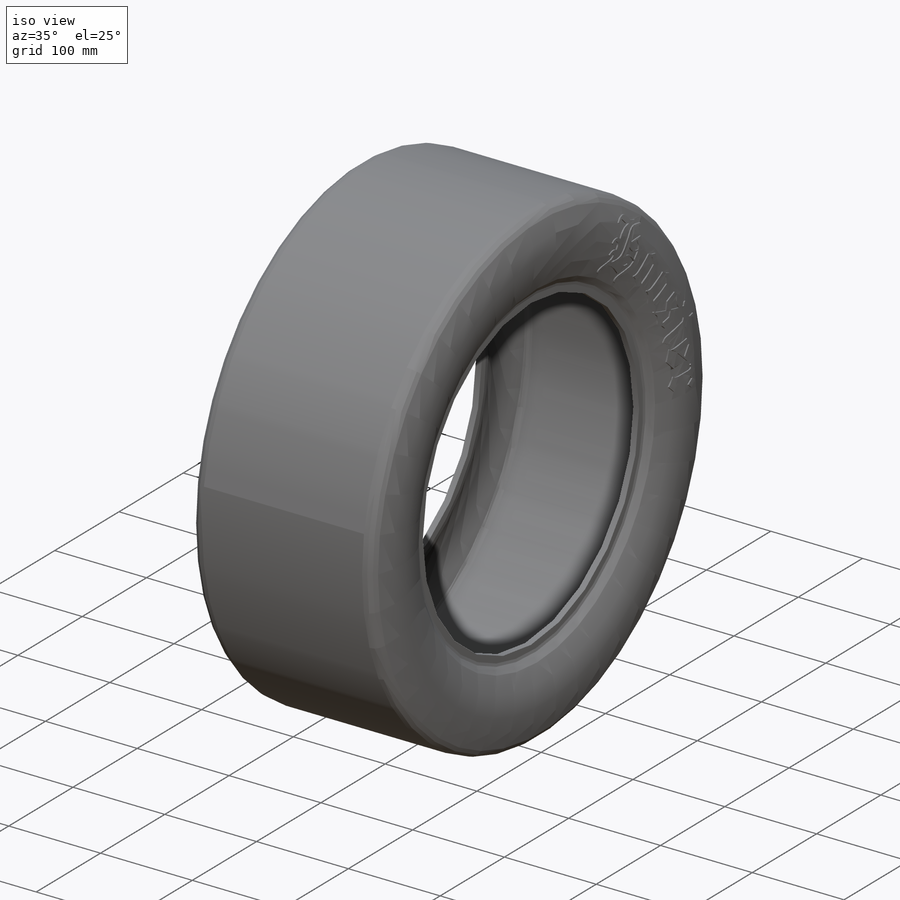
[diagram: iso view]
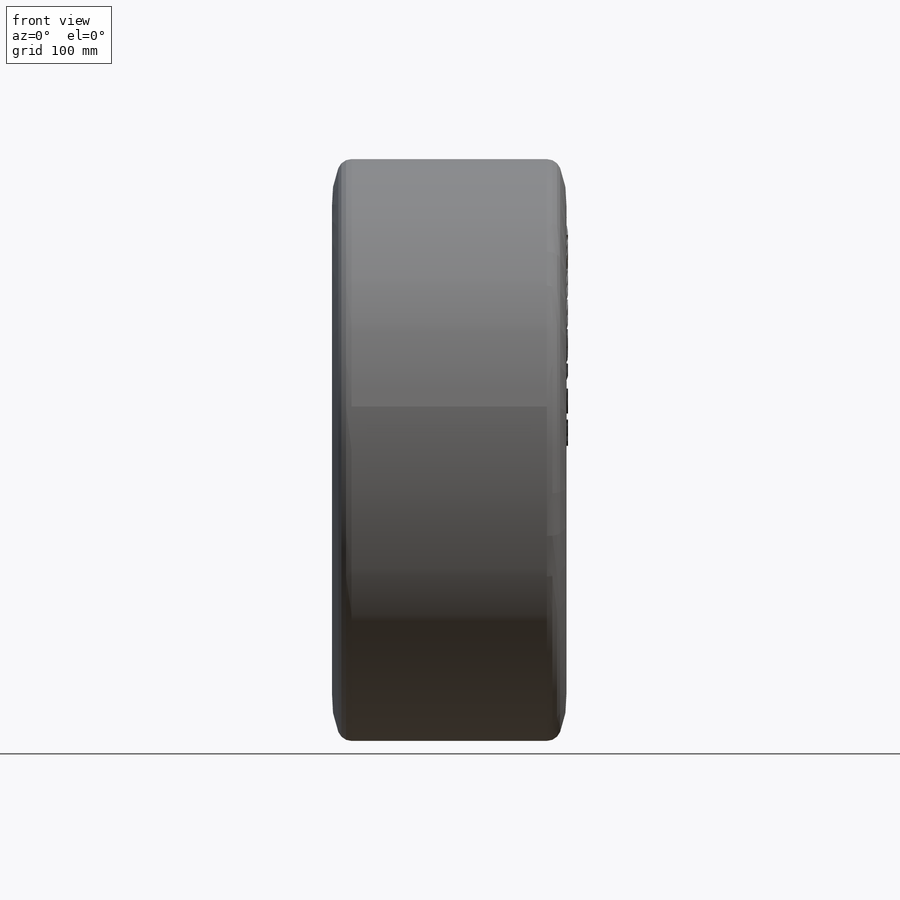
[diagram: front view]
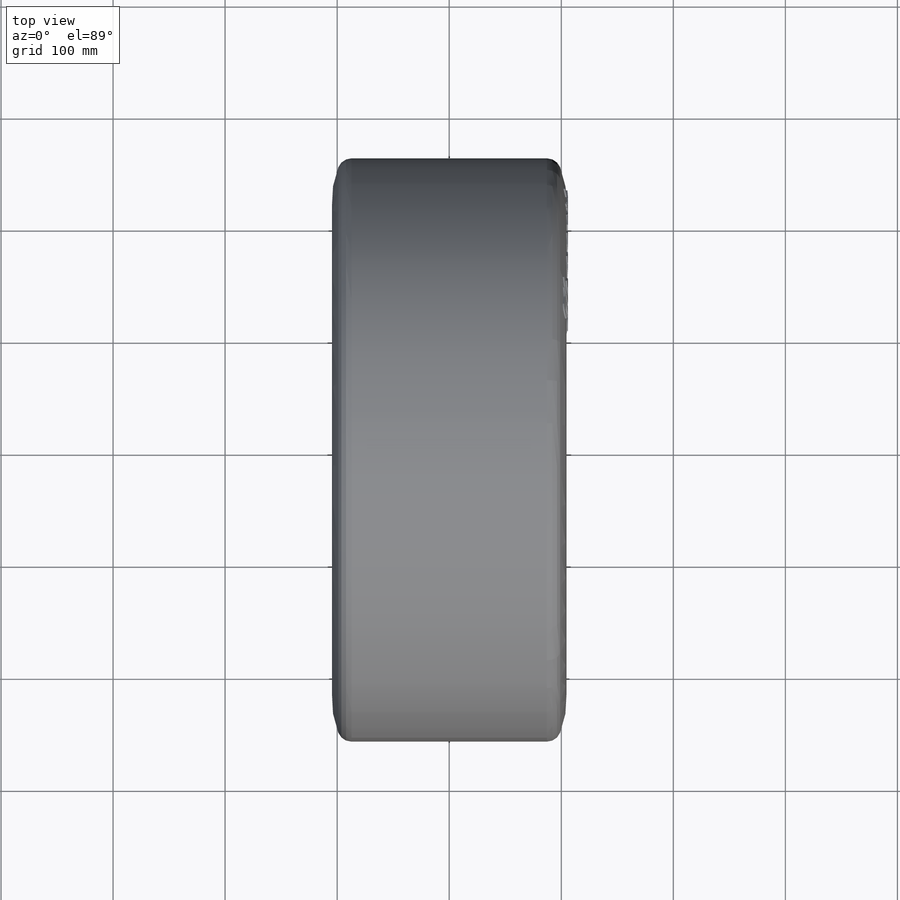
[diagram: top view]
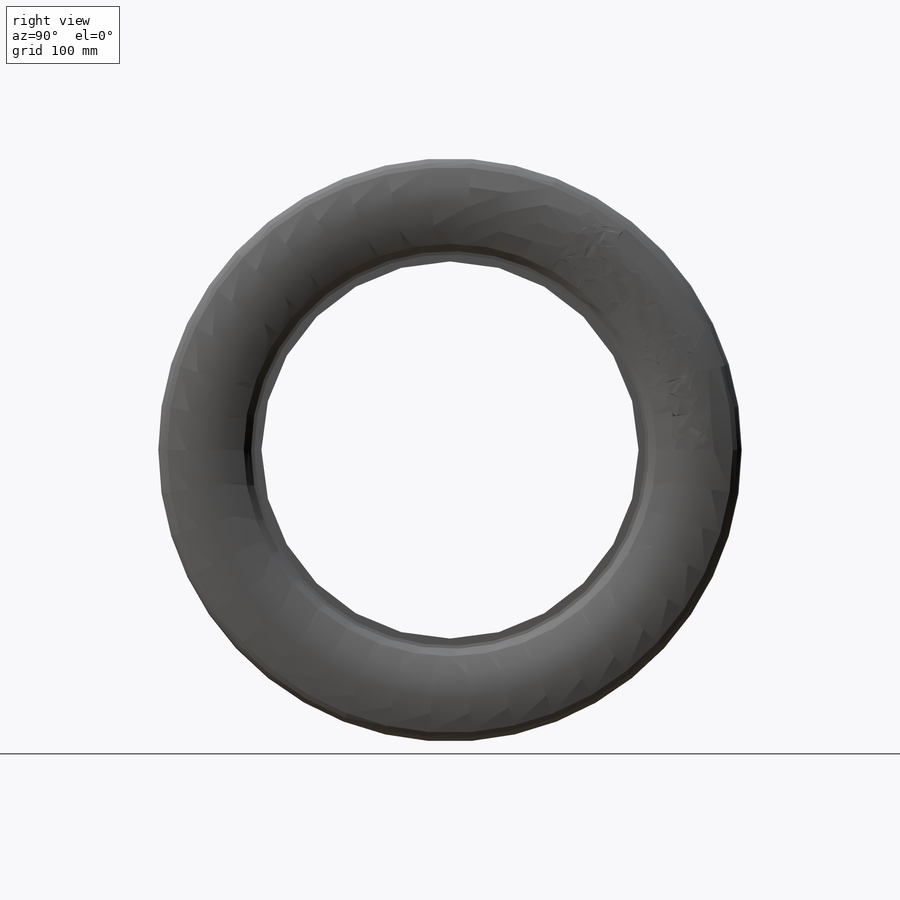
[diagram: right view]
SOLIDWORKS PART (.sldprt)
format: sldprt  version: not decoded by parser v0  size: 823,296 bytes
history: native  units: mm
features: sketch x2, material x1, revolve x1, mirror x1, fillet x1, shell x1, extrude x1 (+11 scaffold rows collapsed)
feature tree (19):
  scaffold x11  (default folders/planes/origin — collapsed)
  material  "Rubber"
  sketch  "Sketch1"  dims[c1.D5=15.875mm c1.D6=11.43mm c1.D8=5.715mm c1.D9=6.35mm c1.D7=1.27mm c2.D9=5.715mm c2.D10=1.27mm c2.D16=381.0mm c2.D17=381.0mm c2.D4=190.5mm c2.D5=12.7mm c2.D6=6.35mm c2.D1=~151.70658mm c2.D2=88.9mm c2.D3=336.55mm c3.D4=381.0mm c3.D6=172.085mm c3.D5=172.085mm c4.D6=172.085mm c4.D4=172.085mm c4.D5=508.0mm c4.D7=8.89mm c5.D6=9.525mm c5.D9=86.0425mm c5.D4=172.085mm c5.D5=9.525mm c5.D11=~6.140959mm c5.D12=~6.140959mm c5.D13=520.7mm c5.D14=86.0425mm c5.D15=86.0425mm c6.D9=95.25mm c6.D4=104.775mm c6.D7=6.35mm]
  revolve  "Revolve1"  Angle=360deg
  mirror  "Mirror1"
  fillet  "Fillet1"  Radius=12.7mm
  shell  "Shell1"  Thickness=6.35mm
  sketch  "Sketch2"  dims[D1=393.7mm]
  extrude  "Extrude1"  Depth=1.27mm
decode coverage: 6 of 7 modeling features carry decoded parameters
note: ~ marks probable driven/reference dimensions
note: suppression state not decoded; provenance and decode notes live in map.json
